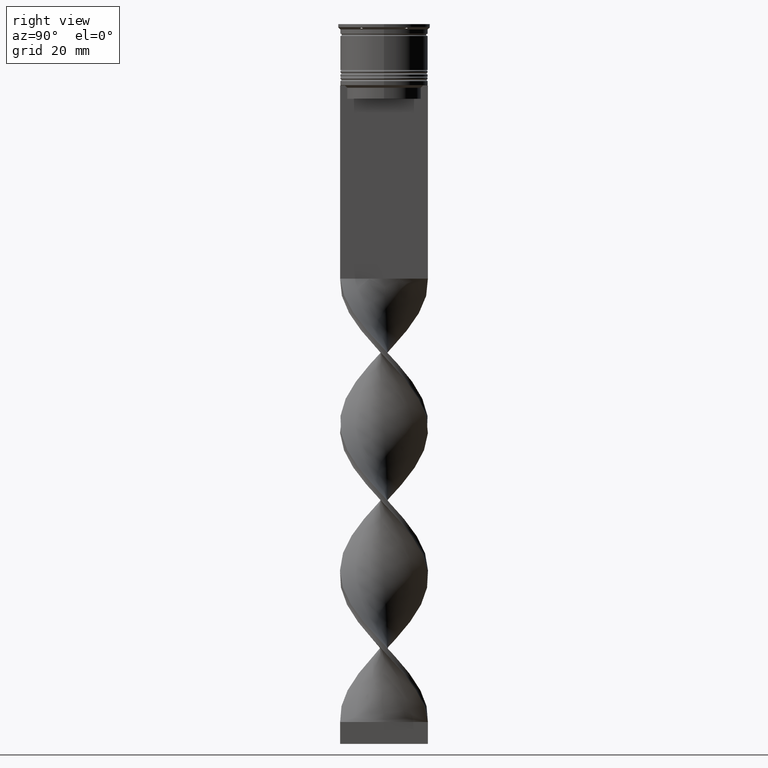
[diagram: clean part render]
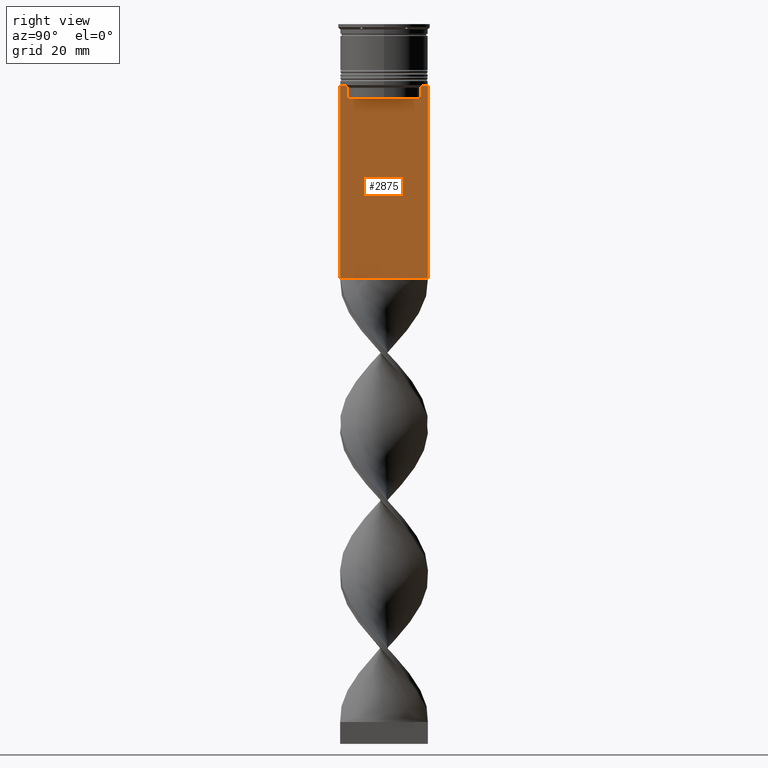
[diagram: same view with one face highlighted and labeled with its STEP entity id]
A machine part, right view. The second image highlights one B-rep face of the part: STEP entity #2875.
In plain terms, the highlighted planar face has unit normal (-1, 0, 0).
Its self-contained STEP definition (entity closure, byte-faithful):
#44 = DIRECTION ( 'NONE',  ( 0.000000000000000000, -1.000000000000000000, 0.000000000000000000 ) ) ;
#143 = CARTESIAN_POINT ( 'NONE',  ( 0.7500000000000001110, -8.366450860430608927, -17.00000000000000000 ) ) ;
#233 = CARTESIAN_POINT ( 'NONE',  ( 0.7500000000000001110, -10.00000000000000533, -14.00000000000000178 ) ) ;
#284 = CARTESIAN_POINT ( 'NONE',  ( 0.7500000000000001110, -10.00000000000000533, -14.00000000000000178 ) ) ;
#310 = LINE ( 'NONE', #1551, #888 ) ;
#314 = ORIENTED_EDGE ( 'NONE', *, *, #1995, .T. ) ;
#358 = CARTESIAN_POINT ( 'NONE',  ( 0.7500000000000001110, -10.00000000000000533, 6.056171120131581098 ) ) ;
#380 = CARTESIAN_POINT ( 'NONE',  ( 0.7500000000000001110, 8.366450860430608927, 0.000000000000000000 ) ) ;
#408 = DIRECTION ( 'NONE',  ( 0.000000000000000000, 1.000000000000000000, 0.000000000000000000 ) ) ;
#452 = VECTOR ( 'NONE', #2996, 1000.000000000000000 ) ;
#572 = ORIENTED_EDGE ( 'NONE', *, *, #1523, .T. ) ;
#705 = CARTESIAN_POINT ( 'NONE',  ( 0.7500000000000001110, -8.366450860430608927, -14.50000000000000000 ) ) ;
#767 = LINE ( 'NONE', #1987, #2409 ) ;
#794 = EDGE_CURVE ( 'NONE', #2972, #2462, #310, .T. ) ;
#867 = CARTESIAN_POINT ( 'NONE',  ( 0.7500000000000002220, 9.999999999999998224, -58.00000000000000000 ) ) ;
#875 = ORIENTED_EDGE ( 'NONE', *, *, #3894, .T. ) ;
#888 = VECTOR ( 'NONE', #2769, 1000.000000000000000 ) ;
#905 = DIRECTION ( 'NONE',  ( 0.000000000000000000, -1.000000000000000000, 0.000000000000000000 ) ) ;
#958 = LINE ( 'NONE', #1857, #1190 ) ;
#1025 = ORIENTED_EDGE ( 'NONE', *, *, #794, .T. ) ;
#1032 = VERTEX_POINT ( 'NONE', #1418 ) ;
#1034 = B_SPLINE_CURVE_WITH_KNOTS ( 'NONE', 3,
 ( #3587, #2124, #1542, #3893 ),
 .UNSPECIFIED., .F., .F.,
 ( 4, 4 ),
 ( 0.03866293624047253963, 0.03937282246709320616 ),
 .UNSPECIFIED. ) ;
#1084 = VECTOR ( 'NONE', #408, 1000.000000000000000 ) ;
#1141 = DIRECTION ( 'NONE',  ( -0.000000000000000000, -0.000000000000000000, 1.000000000000000000 ) ) ;
#1143 = VECTOR ( 'NONE', #2180, 1000.000000000000000 ) ;
#1189 = ORIENTED_EDGE ( 'NONE', *, *, #2835, .T. ) ;
#1190 = VECTOR ( 'NONE', #3071, 1000.000000000000000 ) ;
#1194 = CARTESIAN_POINT ( 'NONE',  ( 0.7500000000000001110, 9.871550030263739117, -14.00000000000000178 ) ) ;
#1218 = CARTESIAN_POINT ( 'NONE',  ( 0.7500000000000001110, -8.868342573446296839, -14.00000000000000178 ) ) ;
#1293 = FACE_OUTER_BOUND ( 'NONE', #3757, .T. ) ;
#1307 = CARTESIAN_POINT ( 'NONE',  ( 0.7500000000000001110, -10.00000000000000533, 6.056171120131581098 ) ) ;
#1314 = VERTEX_POINT ( 'NONE', #1631 ) ;
#1318 = ORIENTED_EDGE ( 'NONE', *, *, #2767, .F. ) ;
#1418 = CARTESIAN_POINT ( 'NONE',  ( 0.7500000000000001110, -9.871550030263739117, -14.00000000000000178 ) ) ;
#1424 = VERTEX_POINT ( 'NONE', #1218 ) ;
#1501 = LINE ( 'NONE', #1544, #2326 ) ;
#1523 = EDGE_CURVE ( 'NONE', #3454, #3363, #1822, .T. ) ;
#1542 = CARTESIAN_POINT ( 'NONE',  ( 0.7500000000000001110, -8.701063080777121428, -14.16668447713511725 ) ) ;
#1544 = CARTESIAN_POINT ( 'NONE',  ( 0.7500000000000001110, -10.00000000000000533, -14.00000000000000178 ) ) ;
#1551 = CARTESIAN_POINT ( 'NONE',  ( 0.7500000000000001110, 8.400000000000003908, -17.00000000000000000 ) ) ;
#1559 = CARTESIAN_POINT ( 'NONE',  ( 0.7500000000000001110, -10.00000000000000533, -58.00000000000000000 ) ) ;
#1604 = EDGE_CURVE ( 'NONE', #2462, #2276, #767, .T. ) ;
#1627 = LINE ( 'NONE', #3405, #3037 ) ;
#1631 = CARTESIAN_POINT ( 'NONE',  ( 0.7500000000000001110, 8.868342573446296839, -14.00000000000000178 ) ) ;
#1724 = ORIENTED_EDGE ( 'NONE', *, *, #1604, .T. ) ;
#1822 = LINE ( 'NONE', #1307, #1143 ) ;
#1857 = CARTESIAN_POINT ( 'NONE',  ( 0.7500000000000001110, -10.00000000000000533, -14.00000000000000178 ) ) ;
#1950 = AXIS2_PLACEMENT_3D ( 'NONE', #358, #2824, #2501 ) ;
#1962 = CARTESIAN_POINT ( 'NONE',  ( 0.7500000000000001110, 8.701063075415250481, -14.16668448247791545 ) ) ;
#1984 = CARTESIAN_POINT ( 'NONE',  ( 0.7500000000000001110, -10.00000000000000533, -58.00000000000000000 ) ) ;
#1987 = CARTESIAN_POINT ( 'NONE',  ( 0.7500000000000001110, -8.366450860430608927, 0.000000000000000000 ) ) ;
#1989 = VERTEX_POINT ( 'NONE', #2516 ) ;
#1995 = EDGE_CURVE ( 'NONE', #3363, #2981, #3718, .T. ) ;
#2003 = CARTESIAN_POINT ( 'NONE',  ( 0.7500000000000001110, 8.366450860430608927, -14.50000000000000000 ) ) ;
#2068 = CARTESIAN_POINT ( 'NONE',  ( 0.7500000000000001110, 8.366450860430608927, -17.00000000000000000 ) ) ;
#2070 = VECTOR ( 'NONE', #3429, 1000.000000000000000 ) ;
#2083 = ORIENTED_EDGE ( 'NONE', *, *, #2561, .T. ) ;
#2120 = CARTESIAN_POINT ( 'NONE',  ( 0.7500000000000001110, 9.999999999999998224, 6.056171120131581098 ) ) ;
#2124 = CARTESIAN_POINT ( 'NONE',  ( 0.7500000000000001110, -8.533766903463440912, -14.33335220807192023 ) ) ;
#2145 = EDGE_CURVE ( 'NONE', #2276, #1424, #1034, .T. ) ;
#2180 = DIRECTION ( 'NONE',  ( 0.000000000000000000, 0.000000000000000000, -1.000000000000000000 ) ) ;
#2211 = VECTOR ( 'NONE', #44, 1000.000000000000000 ) ;
#2275 = CARTESIAN_POINT ( 'NONE',  ( 0.7500000000000001110, 8.868342573446296839, -14.00000000000000178 ) ) ;
#2276 = VERTEX_POINT ( 'NONE', #705 ) ;
#2302 = ORIENTED_EDGE ( 'NONE', *, *, #3496, .T. ) ;
#2326 = VECTOR ( 'NONE', #905, 1000.000000000000000 ) ;
#2409 = VECTOR ( 'NONE', #1141, 1000.000000000000000 ) ;
#2462 = VERTEX_POINT ( 'NONE', #143 ) ;
#2501 = DIRECTION ( 'NONE',  ( 0.000000000000000000, 0.000000000000000000, 1.000000000000000000 ) ) ;
#2516 = CARTESIAN_POINT ( 'NONE',  ( 0.7500000000000001110, 9.999999999999998224, -14.00000000000000178 ) ) ;
#2561 = EDGE_CURVE ( 'NONE', #1314, #3355, #3854, .T. ) ;
#2767 = EDGE_CURVE ( 'NONE', #1989, #2981, #3290, .T. ) ;
#2769 = DIRECTION ( 'NONE',  ( 0.000000000000000000, -1.000000000000000000, 0.000000000000000000 ) ) ;
#2824 = DIRECTION ( 'NONE',  ( -1.000000000000000000, 0.000000000000000000, 0.000000000000000000 ) ) ;
#2835 = EDGE_CURVE ( 'NONE', #3554, #1314, #958, .T. ) ;
#2852 = EDGE_CURVE ( 'NONE', #3355, #2972, #3350, .T. ) ;
#2875 = ADVANCED_FACE ( 'NONE', ( #1293 ), #3057, .F. ) ;
#2972 = VERTEX_POINT ( 'NONE', #2068 ) ;
#2981 = VERTEX_POINT ( 'NONE', #867 ) ;
#2996 = DIRECTION ( 'NONE',  ( 0.000000000000000000, 0.000000000000000000, -1.000000000000000000 ) ) ;
#3019 = LINE ( 'NONE', #284, #2211 ) ;
#3037 = VECTOR ( 'NONE', #3769, 1000.000000000000000 ) ;
#3057 = PLANE ( 'NONE',  #1950 ) ;
#3071 = DIRECTION ( 'NONE',  ( 0.000000000000000000, -1.000000000000000000, 0.000000000000000000 ) ) ;
#3168 = CARTESIAN_POINT ( 'NONE',  ( 0.7500000000000001110, 8.533766897779925031, -14.33335221373273605 ) ) ;
#3290 = LINE ( 'NONE', #2120, #452 ) ;
#3298 = ORIENTED_EDGE ( 'NONE', *, *, #2145, .T. ) ;
#3350 = LINE ( 'NONE', #380, #2070 ) ;
#3355 = VERTEX_POINT ( 'NONE', #2003 ) ;
#3363 = VERTEX_POINT ( 'NONE', #1984 ) ;
#3405 = CARTESIAN_POINT ( 'NONE',  ( 0.7500000000000001110, -10.00000000000000533, -14.00000000000000178 ) ) ;
#3429 = DIRECTION ( 'NONE',  ( 0.000000000000000000, 0.000000000000000000, -1.000000000000000000 ) ) ;
#3454 = VERTEX_POINT ( 'NONE', #233 ) ;
#3496 = EDGE_CURVE ( 'NONE', #1989, #3554, #1501, .T. ) ;
#3505 = CARTESIAN_POINT ( 'NONE',  ( 0.7500000000000001110, 8.366450860430608927, -14.50000000000000000 ) ) ;
#3554 = VERTEX_POINT ( 'NONE', #1194 ) ;
#3566 = ORIENTED_EDGE ( 'NONE', *, *, #3567, .T. ) ;
#3567 = EDGE_CURVE ( 'NONE', #1032, #3454, #3019, .T. ) ;
#3587 = CARTESIAN_POINT ( 'NONE',  ( 0.7500000000000001110, -8.366450860430608927, -14.50000000000000000 ) ) ;
#3718 = LINE ( 'NONE', #1559, #1084 ) ;
#3757 = EDGE_LOOP ( 'NONE', ( #1189, #2083, #3794, #1025, #1724, #3298, #875, #3566, #572, #314, #1318, #2302 ) ) ;
#3769 = DIRECTION ( 'NONE',  ( 0.000000000000000000, -1.000000000000000000, 0.000000000000000000 ) ) ;
#3794 = ORIENTED_EDGE ( 'NONE', *, *, #2852, .T. ) ;
#3854 = B_SPLINE_CURVE_WITH_KNOTS ( 'NONE', 3,
 ( #2275, #1962, #3168, #3505 ),
 .UNSPECIFIED., .F., .F.,
 ( 4, 4 ),
 ( 0.01512225952876174867, 0.01583070519299695222 ),
 .UNSPECIFIED. ) ;
#3893 = CARTESIAN_POINT ( 'NONE',  ( 0.7500000000000001110, -8.868342573446296839, -14.00000000000000178 ) ) ;
#3894 = EDGE_CURVE ( 'NONE', #1424, #1032, #1627, .T. ) ;